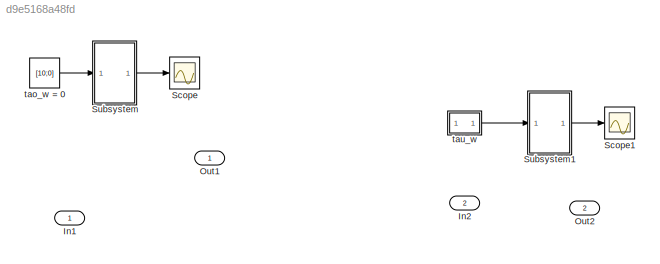
MODEL slx_d9e5168a48fd
KIND model
CONFIG AbsTol = auto
CONFIG EnableMultiTasking = off
CONFIG FixedStep = 0.002
CONFIG MaxStep = auto
CONFIG MinStep = auto
CONFIG RelTol = 1e-3
CONFIG SampleTimeConstraint = Unconstrained
CONFIG SolverName = VariableStepAuto
CONFIG StartTime = 0.0
CONFIG StopTime = 2000
BLOCK [Inport] In1
BLOCK [Inport] In2
  Port = 2
BLOCK [Outport] Out1
BLOCK [Outport] Out2
  Port = 2
BLOCK [Scope] Scope
  Floating = off
  NumInputPorts = 1
  ScopeSpecificationString = Simulink.scopes.TimeScopeBlockCfg('CurrentConfiguration', extmgr.ConfigurationSet(extmgr.Configuration('Core','General UI',true),extmgr.Configuration('Core','Source UI',true),extmgr.Configuration('Sources','WiredSimulink',true,'DataLoggingVariableName','ScopeData1'),extmgr.Configuration('Visuals','Time Domain',true,'SerializedDisplays',{struct('MinYLimReal','-25.68576','MaxYLimReal','231.17164','Y...<+1458ch>
BLOCK [Scope] Scope1
  Floating = off
  NumInputPorts = 1
  ScopeSpecificationString = Simulink.scopes.TimeScopeBlockCfg('CurrentConfiguration', extmgr.ConfigurationSet(extmgr.Configuration('Core','General UI',true),extmgr.Configuration('Core','Source UI',true),extmgr.Configuration('Sources','WiredSimulink',true,'DataLoggingVariableName','ScopeData2'),extmgr.Configuration('Visuals','Time Domain',true,'SerializedDisplays',{struct('MinYLimReal','-0.51488','MaxYLimReal','2.39579','YLab...<+1386ch>
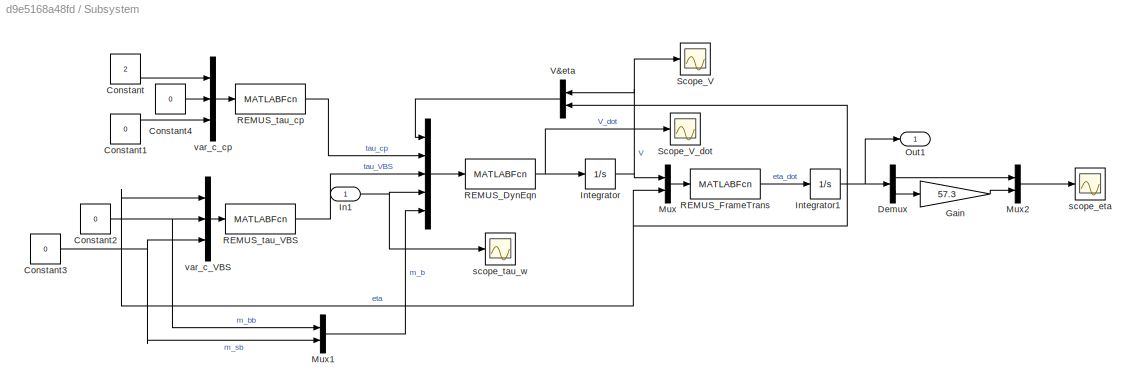
BLOCK [SubSystem] Subsystem
BLOCK [Mux] Subsystem/ 
  DisplayOption = bar
  Inputs = 5
BLOCK [Constant] Subsystem/Constant
  Value = 2
BLOCK [Constant] Subsystem/Constant1
  Value = 0
BLOCK [Constant] Subsystem/Constant2
  Value = 0
BLOCK [Constant] Subsystem/Constant3
  Value = 0
BLOCK [Constant] Subsystem/Constant4
  Value = 0
BLOCK [Demux] Subsystem/Demux
  Outputs = 2
BLOCK [Gain] Subsystem/Gain
  Gain = 57.3
BLOCK [Inport] Subsystem/In1
BLOCK [Integrator] Subsystem/Integrator
BLOCK [Integrator] Subsystem/Integrator1
BLOCK [Mux] Subsystem/Mux
  DisplayOption = bar
  Inputs = 2
BLOCK [Mux] Subsystem/Mux1
  DisplayOption = bar
  Inputs = 2
BLOCK [Mux] Subsystem/Mux2
  DisplayOption = bar
  Inputs = 2
BLOCK [Outport] Subsystem/Out1
BLOCK [MATLABFcn] Subsystem/REMUS_DynEqn
  MATLABFcn = REMUS_DynEqn
  OutputDimensions = 2
BLOCK [MATLABFcn] Subsystem/REMUS_FrameTrans
  MATLABFcn = REMUS_FrameTrans
  OutputDimensions = 2
BLOCK [MATLABFcn] Subsystem/REMUS_tau_VBS
  MATLABFcn = REMUS_tau_VBS
  OutputDimensions = 2
BLOCK [MATLABFcn] Subsystem/REMUS_tau_cp
  MATLABFcn = REMUS_tau_cp
  OutputDimensions = 2
BLOCK [Scope] Subsystem/Scope_V
  Floating = off
  NumInputPorts = 1
  ScopeSpecificationString = Simulink.scopes.TimeScopeBlockCfg('CurrentConfiguration', extmgr.ConfigurationSet(extmgr.Configuration('Core','General UI',true),extmgr.Configuration('Core','Source UI',true),extmgr.Configuration('Sources','WiredSimulink',true,'DataLoggingVariableName','ScopeData2'),extmgr.Configuration('Visuals','Time Domain',true,'SerializedDisplays',{struct('MinYLimReal','-0.26206','MaxYLimReal','2.33241','YLab...<+1441ch>
BLOCK [Scope] Subsystem/Scope_V_dot
  Floating = off
  NumInputPorts = 1
  ScopeSpecificationString = Simulink.scopes.TimeScopeBlockCfg('CurrentConfiguration', extmgr.ConfigurationSet(extmgr.Configuration('Core','General UI',true),extmgr.Configuration('Core','Source UI',true),extmgr.Configuration('Sources','WiredSimulink',true,'DataLoggingVariableName','ScopeData1'),extmgr.Configuration('Visuals','Time Domain',true,'SerializedDisplays',{struct('MinYLimReal','0.00000000001','MaxYLimReal','0.0000000...<+1474ch>
BLOCK [Mux] Subsystem/V&eta
  DisplayOption = bar
  Inputs = 2
  NameLocation = top
BLOCK [Scope] Subsystem/scope_eta
  Floating = off
  NumInputPorts = 1
  ScopeSpecificationString = Simulink.scopes.TimeScopeBlockCfg('CurrentConfiguration', extmgr.ConfigurationSet(extmgr.Configuration('Core','General UI',true),extmgr.Configuration('Core','Source UI',true),extmgr.Configuration('Sources','WiredSimulink',true),extmgr.Configuration('Visuals','Time Domain',true,'SerializedDisplays',{struct('MinYLimReal','-7.30476','MaxYLimReal','65.73272','YLabelReal','','MinYLimMag','0.00000','Max...<+1411ch>
BLOCK [Scope] Subsystem/scope_tau_w
  Floating = off
  NumInputPorts = 1
  ScopeSpecificationString = Simulink.scopes.TimeScopeBlockCfg('CurrentConfiguration', extmgr.ConfigurationSet(extmgr.Configuration('Core','General UI',true),extmgr.Configuration('Core','Source UI',true),extmgr.Configuration('Sources','WiredSimulink',true,'DataLoggingVariableName','ScopeData1'),extmgr.Configuration('Visuals','Time Domain',true,'PlotType','Line','SerializedDisplays',{struct('MinYLimReal','-7.75835','MaxYLimRea...<+1625ch>
BLOCK [Mux] Subsystem/var_c_VBS
  DisplayOption = bar
  Inputs = 3
BLOCK [Mux] Subsystem/var_c_cp
  DisplayOption = bar
  Inputs = 3
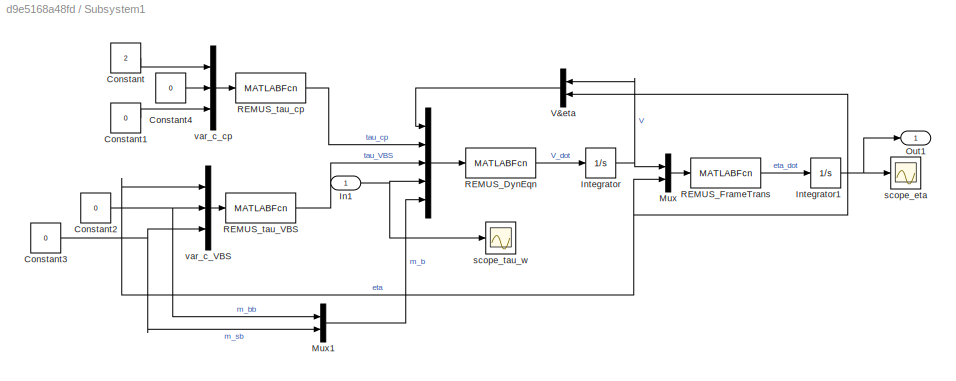
BLOCK [SubSystem] Subsystem1
BLOCK [Mux] Subsystem1/ 
  DisplayOption = bar
  Inputs = 5
BLOCK [Constant] Subsystem1/Constant
  Value = 2
BLOCK [Constant] Subsystem1/Constant1
  Value = 0
BLOCK [Constant] Subsystem1/Constant2
  Value = 0
BLOCK [Constant] Subsystem1/Constant3
  Value = 0
BLOCK [Constant] Subsystem1/Constant4
  Value = 0
BLOCK [Inport] Subsystem1/In1
BLOCK [Integrator] Subsystem1/Integrator
BLOCK [Integrator] Subsystem1/Integrator1
BLOCK [Mux] Subsystem1/Mux
  DisplayOption = bar
  Inputs = 2
BLOCK [Mux] Subsystem1/Mux1
  DisplayOption = bar
  Inputs = 2
BLOCK [Outport] Subsystem1/Out1
BLOCK [MATLABFcn] Subsystem1/REMUS_DynEqn
  MATLABFcn = REMUS_DynEqn
  OutputDimensions = 2
BLOCK [MATLABFcn] Subsystem1/REMUS_FrameTrans
  MATLABFcn = REMUS_FrameTrans
  OutputDimensions = 2
BLOCK [MATLABFcn] Subsystem1/REMUS_tau_VBS
  MATLABFcn = REMUS_tau_VBS
  OutputDimensions = 2
BLOCK [MATLABFcn] Subsystem1/REMUS_tau_cp
  MATLABFcn = REMUS_tau_cp
  OutputDimensions = 2
BLOCK [Mux] Subsystem1/V&eta
  DisplayOption = bar
  Inputs = 2
  NameLocation = top
BLOCK [Scope] Subsystem1/scope_eta
  Floating = off
  NumInputPorts = 1
  ScopeSpecificationString = Simulink.scopes.TimeScopeBlockCfg('CurrentConfiguration', extmgr.ConfigurationSet(extmgr.Configuration('Core','General UI',true),extmgr.Configuration('Core','Source UI',true),extmgr.Configuration('Sources','WiredSimulink',true),extmgr.Configuration('Visuals','Time Domain',true,'SerializedDisplays',{struct('MinYLimReal','-0.32616','MaxYLimReal','1.45528','YLabelReal','','MinYLimMag','0.00000','MaxY...<+1366ch>
BLOCK [Scope] Subsystem1/scope_tau_w
  Floating = off
  NumInputPorts = 1
  ScopeSpecificationString = Simulink.scopes.TimeScopeBlockCfg('CurrentConfiguration', extmgr.ConfigurationSet(extmgr.Configuration('Core','General UI',true),extmgr.Configuration('Core','Source UI',true),extmgr.Configuration('Sources','WiredSimulink',true,'DataLoggingVariableName','ScopeData1'),extmgr.Configuration('Visuals','Time Domain',true,'PlotType','Line','SerializedDisplays',{struct('MinYLimReal','-7.75835','MaxYLimRea...<+1625ch>
BLOCK [Mux] Subsystem1/var_c_VBS
  DisplayOption = bar
  Inputs = 3
BLOCK [Mux] Subsystem1/var_c_cp
  DisplayOption = bar
  Inputs = 3
BLOCK [Constant] tao_w = 0
  Value = [10;0]
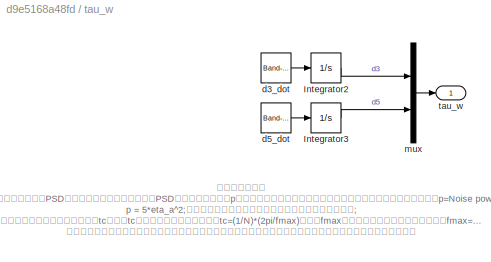
BLOCK [SubSystem] tau_w
BLOCK [Integrator] tau_w/Integrator2
BLOCK [Integrator] tau_w/Integrator3
BLOCK [Reference] tau_w/d3_dot  REF=simulink/Sources/Band-Limited
White Noise
  SourceBlock = simulink/Sources/Band-Limited\nWhite Noise
  SourceType = Band-Limited White Noise.
BLOCK [Reference] tau_w/d5_dot  REF=simulink/Sources/Band-Limited
White Noise
  SourceBlock = simulink/Sources/Band-Limited\nWhite Noise
  SourceType = Band-Limited White Noise.
BLOCK [Mux] tau_w/mux
  DisplayOption = bar
  Inputs = 2
BLOCK [Outport] tau_w/tau_w
  SignalType = real
ANNOTATION tau_w: 高斯白噪声模块 噪声功率：指定白噪声PSD（能量谱密度）的高度，这个PSD并不是噪声的能量p（并且这个能量的分布是常值），它与能量之间有一个转换关系，p=Noise power/tc，tc就在下面；默认值为0.1。S(w) = 0.5*eta_a^2; p = 5*eta_a^2;也就是说此处的噪声能量相当于信号幅值平方的平均值; 采样时间：指定噪声的相关时间tc，这个tc与系统的带宽之间的关系是tc=(1/N)*(2pi/fmax)，其中fmax是系统的带宽（实际上是角频率，fmax=2*pi*f，这个f才是我们常使用的频率Hz），N可以看成是采样率与系统频率的倍数关系（文档中推荐使用100），即采样率=N*系统频率，这和采样定理一致；默认值是0.1。 种子：这个参数是用来指定随机数生成器的初始值的，即种子，指定随机数生成器的起始种子。相当于不同相位。
LINE Subsystem/ :1 -> Subsystem/REMUS_DynEqn:1
LINE Subsystem/Constant1:1 -> Subsystem/var_c_cp:3
NET Subsystem/Constant2:1 -> Subsystem/Mux1:1, Subsystem/var_c_VBS:2
NET Subsystem/Constant3:1 -> Subsystem/Mux1:2, Subsystem/var_c_VBS:3
LINE Subsystem/Constant4:1 -> Subsystem/var_c_cp:2
LINE Subsystem/Constant:1 -> Subsystem/var_c_cp:1
LINE Subsystem/Demux:1 -> Subsystem/Mux2:1
LINE Subsystem/Demux:2 -> Subsystem/Gain:1
LINE Subsystem/Gain:1 -> Subsystem/Mux2:2
NET Subsystem/In1:1 -> Subsystem/ :4, Subsystem/scope_tau_w:1
NET Subsystem/Integrator1:1 -> Subsystem/Demux:1, Subsystem/Mux:2, Subsystem/Out1:1, Subsystem/V&eta:2, Subsystem/var_c_VBS:1
NET Subsystem/Integrator:1 -> Subsystem/Mux:1, Subsystem/Scope_V:1, Subsystem/V&eta:1
LINE Subsystem/Mux1:1 -> Subsystem/ :5
LINE Subsystem/Mux2:1 -> Subsystem/scope_eta:1
LINE Subsystem/Mux:1 -> Subsystem/REMUS_FrameTrans:1
NET Subsystem/REMUS_DynEqn:1 -> Subsystem/Integrator:1, Subsystem/Scope_V_dot:1
LINE Subsystem/REMUS_FrameTrans:1 -> Subsystem/Integrator1:1
LINE Subsystem/REMUS_tau_VBS:1 -> Subsystem/ :3
LINE Subsystem/REMUS_tau_cp:1 -> Subsystem/ :2
LINE Subsystem/V&eta:1 -> Subsystem/ :1
LINE Subsystem/var_c_VBS:1 -> Subsystem/REMUS_tau_VBS:1
LINE Subsystem/var_c_cp:1 -> Subsystem/REMUS_tau_cp:1
LINE Subsystem1/ :1 -> Subsystem1/REMUS_DynEqn:1
LINE Subsystem1/Constant1:1 -> Subsystem1/var_c_cp:3
NET Subsystem1/Constant2:1 -> Subsystem1/Mux1:1, Subsystem1/var_c_VBS:2
NET Subsystem1/Constant3:1 -> Subsystem1/Mux1:2, Subsystem1/var_c_VBS:3
LINE Subsystem1/Constant4:1 -> Subsystem1/var_c_cp:2
LINE Subsystem1/Constant:1 -> Subsystem1/var_c_cp:1
NET Subsystem1/In1:1 -> Subsystem1/ :4, Subsystem1/scope_tau_w:1
NET Subsystem1/Integrator1:1 -> Subsystem1/Mux:2, Subsystem1/Out1:1, Subsystem1/V&eta:2, Subsystem1/scope_eta:1, Subsystem1/var_c_VBS:1
NET Subsystem1/Integrator:1 -> Subsystem1/Mux:1, Subsystem1/V&eta:1
LINE Subsystem1/Mux1:1 -> Subsystem1/ :5
LINE Subsystem1/Mux:1 -> Subsystem1/REMUS_FrameTrans:1
LINE Subsystem1/REMUS_DynEqn:1 -> Subsystem1/Integrator:1
LINE Subsystem1/REMUS_FrameTrans:1 -> Subsystem1/Integrator1:1
LINE Subsystem1/REMUS_tau_VBS:1 -> Subsystem1/ :3
LINE Subsystem1/REMUS_tau_cp:1 -> Subsystem1/ :2
LINE Subsystem1/V&eta:1 -> Subsystem1/ :1
LINE Subsystem1/var_c_VBS:1 -> Subsystem1/REMUS_tau_VBS:1
LINE Subsystem1/var_c_cp:1 -> Subsystem1/REMUS_tau_cp:1
LINE Subsystem1:1 -> Scope1:1
LINE Subsystem:1 -> Scope:1
LINE tao_w = 0:1 -> Subsystem:1
LINE tau_w/Integrator2:1 -> tau_w/mux:1
LINE tau_w/Integrator3:1 -> tau_w/mux:2
LINE tau_w/d3_dot:1 -> tau_w/Integrator2:1
LINE tau_w/d5_dot:1 -> tau_w/Integrator3:1
LINE tau_w/mux:1 -> tau_w/tau_w:1
LINE tau_w:1 -> Subsystem1:1
note: NET lines group one-source signal fan-out (src -> all destinations, sorted); 1:1 wires keep LINE
